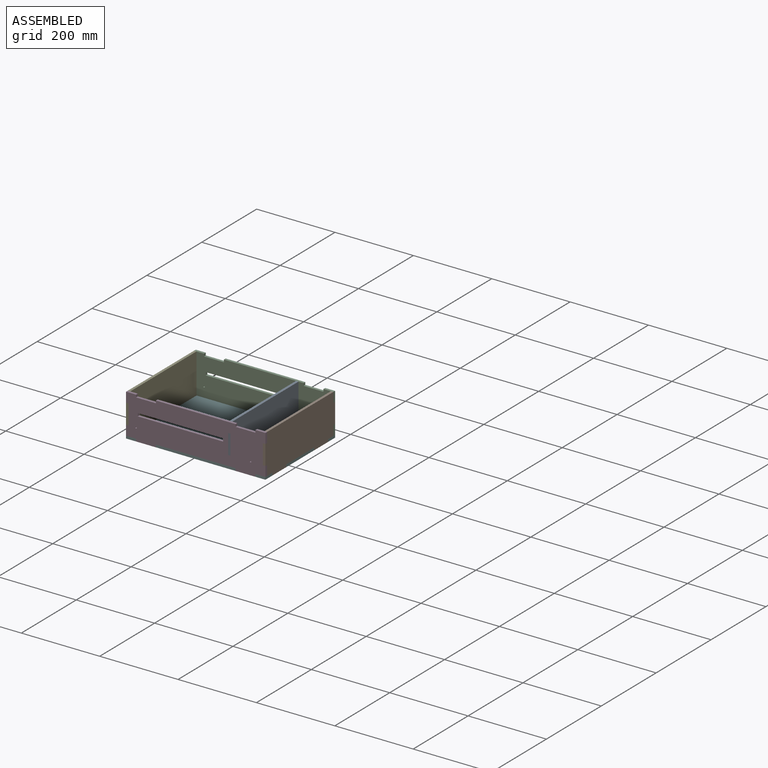
[diagram: assembled view]
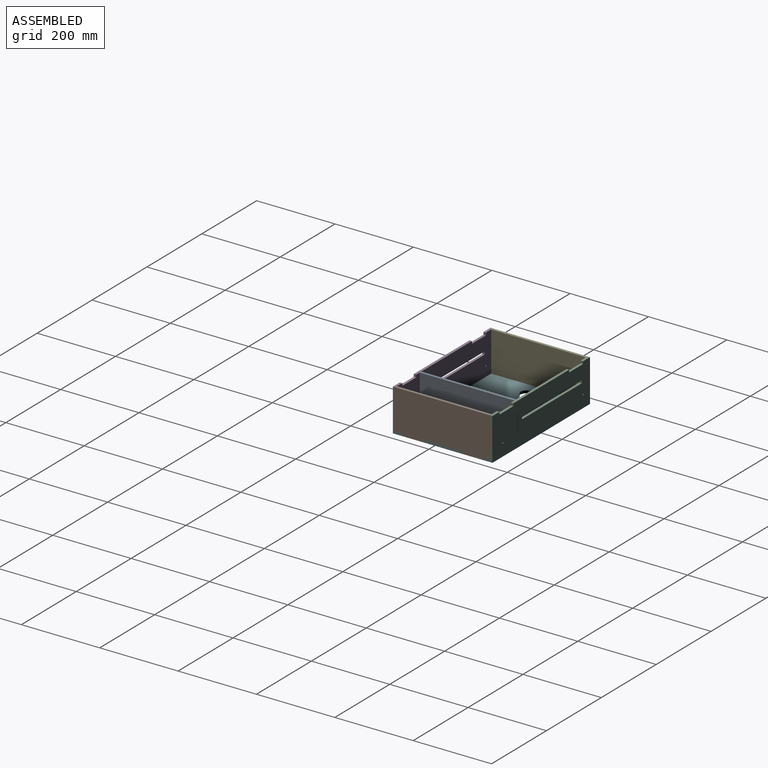
[diagram: assembled view, second angle]
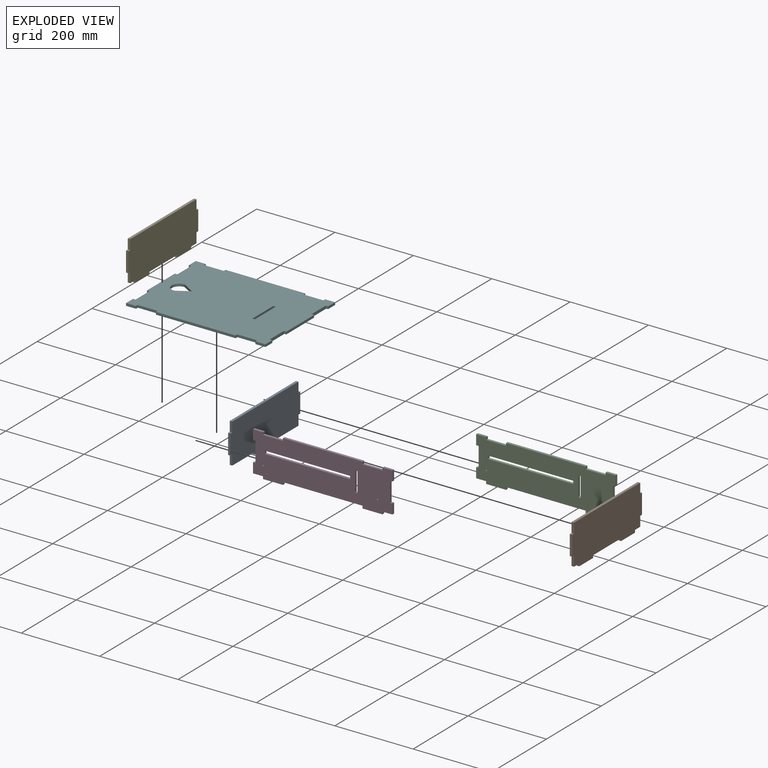
[diagram: exploded view]
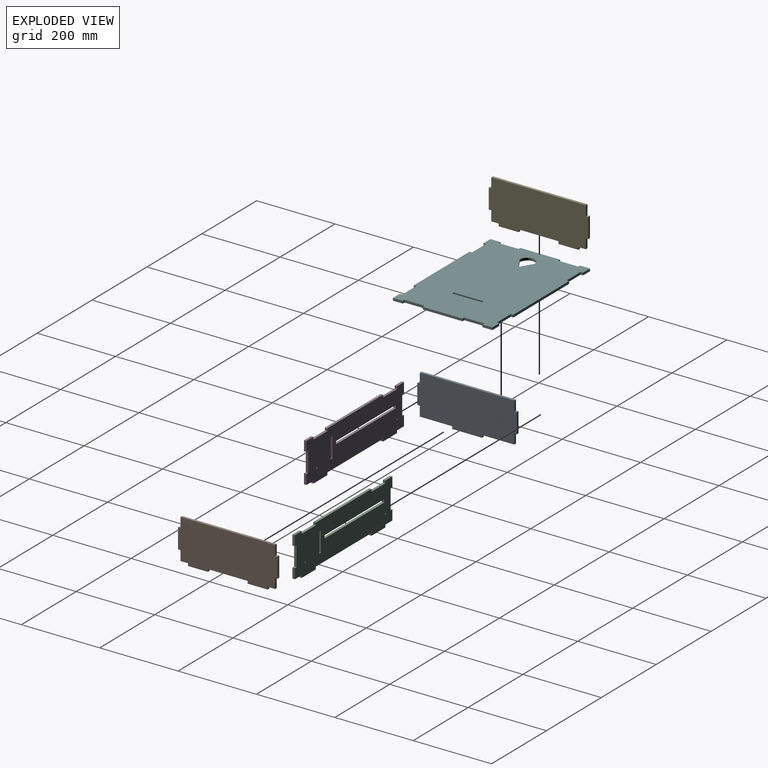
[diagram: exploded view, second angle]
ASSEMBLY  parts=6 mates=5
PART A: 18 faces, bbox 254x6.4x108 mm
  f0: plane 25.4x6.35mm, normal (1,0,0), area 161.3mm2, adj f2,f7,f8,f15
  f1: plane 25.4x6.35mm, normal (-1,0,0), area 161.3mm2, adj f4,f7,f8,f12
  f2: plane 82.55x6.35mm, normal (0,0,-1), area 524.2mm2, adj f0,f7,f8,f9
  f3: plane 25.4x6.35mm, normal (-1,0,0), area 161.3mm2, adj f6,f7,f8,f13
  f4: plane 82.55x6.35mm, normal (0,0,-1), area 524.2mm2, adj f1,f7,f8,f10
  f5: plane 25.4x6.35mm, normal (1,0,0), area 161.3mm2, adj f6,f7,f8,f17
  f6: plane 241.3x6.35mm, normal (0,0,1), area 1532.3mm2, adj f3,f5,f7,f8
  f7: plane 254x107.95mm, normal (0,-1,0), area 25645.1mm2, adj f0,f1,f2,f3,f4,f5,f6,f9
  f8: plane 254x107.95mm, normal (0,1,0), area 25645.1mm2, adj f0,f1,f2,f3,f4,f5,f6,f9
  f9: plane 6.35x6.35mm, normal (1,0,0), area 40.3mm2, adj f2,f7,f8,f11
  f10: plane 6.35x6.35mm, normal (-1,0,0), area 40.3mm2, adj f4,f7,f8,f11
  f11: plane 76.2x6.35mm, normal (0,0,-1), area 483.9mm2, adj f7,f8,f9,f10
  f12: plane 6.35x6.35mm, normal (0,0,-1), area 40.3mm2, adj f1,f7,f8,f14
  f13: plane 6.35x6.35mm, normal (0,0,1), area 40.3mm2, adj f3,f7,f8,f14
  f14: plane 50.8x6.35mm, normal (-1,0,0), area 322.6mm2, adj f7,f8,f12,f13
  f15: plane 6.35x6.35mm, normal (0,0,-1), area 40.3mm2, adj f0,f7,f8,f16
  f16: plane 50.8x6.35mm, normal (1,0,0), area 322.6mm2, adj f7,f8,f15,f17
  f17: plane 6.35x6.35mm, normal (0,0,1), area 40.3mm2, adj f5,f7,f8,f16
PART B: 22 faces, bbox 254x6.4x108 mm
  f0: plane 50.8x6.35mm, normal (0,0,-1), area 322.6mm2, adj f1,f2,f3,f4
  f1: plane 6.35x6.35mm, normal (1,0,0), area 40.3mm2, adj f0,f3,f4,f8
  f2: plane 6.35x6.35mm, normal (-1,0,0), area 40.3mm2, adj f0,f3,f4,f5
  f3: plane 254x107.95mm, normal (0,1,0), area 25806.4mm2, adj f0,f1,f2,f5,f6,f7,f8,f9
  f4: plane 254x107.95mm, normal (0,-1,0), area 25806.4mm2, adj f0,f1,f2,f5,f6,f7,f8,f9
  f5: plane 19.05x6.35mm, normal (0,0,-1), area 121mm2, adj f2,f3,f4,f16
  f6: plane 19.05x6.35mm, normal (0,0,-1), area 121mm2, adj f3,f4,f13,f21
  f7: plane 50.8x6.35mm, normal (-1,0,0), area 322.6mm2, adj f3,f4,f15,f18
  f8: plane 101.6x6.35mm, normal (0,0,-1), area 645.2mm2, adj f1,f3,f4,f19
  f9: plane 50.8x6.35mm, normal (1,0,0), area 322.6mm2, adj f3,f4,f12,f14
  f10: plane 241.3x6.35mm, normal (0,0,1), area 1532.3mm2, adj f3,f4,f11,f17
  f11: plane 25.4x6.35mm, normal (1,0,0), area 161.3mm2, adj f3,f4,f10,f12
  f12: plane 6.35x6.35mm, normal (0,0,1), area 40.3mm2, adj f3,f4,f9,f11
  f13: plane 25.4x6.35mm, normal (1,0,0), area 161.3mm2, adj f3,f4,f6,f14
  f14: plane 6.35x6.35mm, normal (0,0,-1), area 40.3mm2, adj f3,f4,f9,f13
  f15: plane 6.35x6.35mm, normal (0,0,-1), area 40.3mm2, adj f3,f4,f7,f16
  f16: plane 25.4x6.35mm, normal (-1,0,0), area 161.3mm2, adj f3,f4,f5,f15
  f17: plane 25.4x6.35mm, normal (-1,0,0), area 161.3mm2, adj f3,f4,f10,f18
  f18: plane 6.35x6.35mm, normal (0,0,1), area 40.3mm2, adj f3,f4,f7,f17
  f19: plane 6.35x6.35mm, normal (-1,0,0), area 40.3mm2, adj f3,f4,f8,f20
  f20: plane 50.8x6.35mm, normal (0,0,-1), area 322.6mm2, adj f3,f4,f19,f21
  f21: plane 6.35x6.35mm, normal (1,0,0), area 40.3mm2, adj f3,f4,f6,f20
PART C: 40 faces, bbox 6.4x355.6x108 mm
  f0: plane 203.2x6.35mm, normal (0,0,1), area 1290.3mm2, adj f2,f3,f31,f33
  f1: plane 25.4x6.35mm, normal (0,0,1), area 161.3mm2, adj f2,f3,f13,f30
  f2: plane 355.6x107.95mm, normal (-1,0,0), area 33478.7mm2, adj f0,f1,f4,f5,f6,f7,f8,f9
  f3: plane 355.6x107.95mm, normal (1,0,0), area 33478.7mm2, adj f0,f1,f4,f5,f6,f7,f8,f9
  f4: plane 6.35x6.35mm, normal (0,-1,0), area 40.3mm2, adj f2,f3,f5,f7
  f5: plane 50.8x6.35mm, normal (0,0,-1), area 322.6mm2, adj f2,f3,f4,f6
  f6: plane 6.35x6.35mm, normal (0,1,0), area 40.3mm2, adj f2,f3,f5,f12
  f7: plane 25.4x6.35mm, normal (0,0,-1), area 161.3mm2, adj f2,f3,f4,f9
  f8: plane 25.4x6.35mm, normal (0,0,-1), area 161.3mm2, adj f2,f3,f10,f25
  f9: plane 25.4x6.35mm, normal (0,-1,0), area 161.3mm2, adj f2,f3,f7,f17
  f10: plane 25.4x6.35mm, normal (0,1,0), area 161.3mm2, adj f2,f3,f8,f20
  f11: plane 25.4x6.35mm, normal (0,-1,0), area 161.3mm2, adj f2,f3,f14,f19
  f12: plane 203.2x6.35mm, normal (0,0,-1), area 1290.3mm2, adj f2,f3,f6,f23
  f13: plane 25.4x6.35mm, normal (0,1,0), area 161.3mm2, adj f1,f2,f3,f21
  f14: plane 25.4x6.35mm, normal (0,0,1), area 161.3mm2, adj f2,f3,f11,f34
  f15: cylinder r=1.91mm len=6.35mm, axis (1,0,0), area 76mm2, adj f2,f3
  f16: cylinder r=1.91mm len=6.35mm, axis (1,0,0), area 76mm2, adj f2,f3
  f17: plane 6.35x6.35mm, normal (0,0,1), area 40.3mm2, adj f2,f3,f9,f18
  f18: plane 50.8x6.35mm, normal (0,-1,0), area 322.6mm2, adj f2,f3,f17,f19
  f19: plane 6.35x6.35mm, normal (0,0,-1), area 40.3mm2, adj f2,f3,f11,f18
  f20: plane 6.35x6.35mm, normal (0,0,1), area 40.3mm2, adj f2,f3,f10,f22
  f21: plane 6.35x6.35mm, normal (0,0,-1), area 40.3mm2, adj f2,f3,f13,f22
  f22: plane 50.8x6.35mm, normal (0,1,0), area 322.6mm2, adj f2,f3,f20,f21
  f23: plane 6.35x6.35mm, normal (0,-1,0), area 40.3mm2, adj f2,f3,f12,f24
  f24: plane 50.8x6.35mm, normal (0,0,-1), area 322.6mm2, adj f2,f3,f23,f25
  f25: plane 6.35x6.35mm, normal (0,1,0), area 40.3mm2, adj f2,f3,f8,f24
  f26: plane 50.8x6.35mm, normal (0,1,0), area 322.6mm2, adj f2,f3,f27,f29
  f27: plane 6.35x6.35mm, normal (0,0,1), area 40.3mm2, adj f2,f3,f26,f28
  f28: plane 50.8x6.35mm, normal (0,-1,0), area 322.6mm2, adj f2,f3,f27,f29
  f29: plane 6.35x6.35mm, normal (0,0,-1), area 40.3mm2, adj f2,f3,f26,f28
  f30: plane 6.35x6.35mm, normal (0,-1,0), area 40.3mm2, adj f1,f2,f3,f32
  f31: plane 6.35x6.35mm, normal (0,1,0), area 40.3mm2, adj f0,f2,f3,f32
  f32: plane 50.8x6.35mm, normal (0,0,1), area 322.6mm2, adj f2,f3,f30,f31
  f33: plane 6.35x6.35mm, normal (0,-1,0), area 40.3mm2, adj f0,f2,f3,f35
  f34: plane 6.35x6.35mm, normal (0,1,0), area 40.3mm2, adj f2,f3,f14,f35
  f35: plane 50.8x6.35mm, normal (0,0,1), area 322.6mm2, adj f2,f3,f33,f34
  f36: plane 7.62x6.35mm, normal (0,1,0), area 48.4mm2, adj f2,f3,f37,f39
  f37: plane 217.81x6.35mm, normal (0,0,1), area 1383.1mm2, adj f2,f3,f36,f38
  f38: plane 7.62x6.35mm, normal (0,-1,0), area 48.4mm2, adj f2,f3,f37,f39
  f39: plane 217.81x6.35mm, normal (0,0,-1), area 1383.1mm2, adj f2,f3,f36,f38
PART D: same geometry as C
PART E: same geometry as B
PART F: 45 faces, bbox 254x355.6x6.4 mm
  f0: plane 355.6x254mm, normal (0,0,1), area 86068.2mm2, adj f2,f3,f4,f5,f6,f7,f8,f9
  f1: plane 355.6x254mm, normal (0,0,-1), area 86068.2mm2, adj f2,f3,f4,f5,f6,f7,f8,f9
  f2: plane 203.2x6.35mm, normal (-1,0,0), area 1290.3mm2, adj f0,f1,f34,f35
  f3: plane 25.4x6.35mm, normal (-1,0,0), area 161.3mm2, adj f0,f1,f11,f32
  f4: plane 203.2x6.35mm, normal (1,0,0), area 1290.3mm2, adj f0,f1,f27,f29
  f5: plane 25.4x6.35mm, normal (1,0,0), area 161.3mm2, adj f0,f1,f6,f26
  f6: plane 25.4x6.35mm, normal (0,-1,0), area 161.3mm2, adj f0,f1,f5,f24
  f7: plane 101.6x6.35mm, normal (0,-1,0), area 645.2mm2, adj f0,f1,f20,f23
  f8: plane 25.4x6.35mm, normal (0,1,0), area 161.3mm2, adj f0,f1,f12,f19
  f9: plane 101.6x6.35mm, normal (0,1,0), area 645.2mm2, adj f0,f1,f14,f17
  f10: plane 25.4x6.35mm, normal (-1,0,0), area 161.3mm2, adj f0,f1,f13,f37
  f11: plane 25.4x6.35mm, normal (0,-1,0), area 161.3mm2, adj f0,f1,f3,f22
  f12: plane 25.4x6.35mm, normal (1,0,0), area 161.3mm2, adj f0,f1,f8,f30
  f13: plane 25.4x6.35mm, normal (0,1,0), area 161.3mm2, adj f0,f1,f10,f15
  f14: plane 6.35x6.35mm, normal (-1,0,0), area 40.3mm2, adj f0,f1,f9,f16
  f15: plane 6.35x6.35mm, normal (1,0,0), area 40.3mm2, adj f0,f1,f13,f16
  f16: plane 50.8x6.35mm, normal (0,1,0), area 322.6mm2, adj f0,f1,f14,f15
  f17: plane 6.35x6.35mm, normal (1,0,0), area 40.3mm2, adj f0,f1,f9,f18
  f18: plane 50.8x6.35mm, normal (0,1,0), area 322.6mm2, adj f0,f1,f17,f19
  f19: plane 6.35x6.35mm, normal (-1,0,0), area 40.3mm2, adj f0,f1,f8,f18
  f20: plane 6.35x6.35mm, normal (-1,0,0), area 40.3mm2, adj f0,f1,f7,f21
  f21: plane 50.8x6.35mm, normal (0,-1,0), area 322.6mm2, adj f0,f1,f20,f22
  f22: plane 6.35x6.35mm, normal (1,0,0), area 40.3mm2, adj f0,f1,f11,f21
  f23: plane 6.35x6.35mm, normal (1,0,0), area 40.3mm2, adj f0,f1,f7,f25
  f24: plane 6.35x6.35mm, normal (-1,0,0), area 40.3mm2, adj f0,f1,f6,f25
  f25: plane 50.8x6.35mm, normal (0,-1,0), area 322.6mm2, adj f0,f1,f23,f24
  f26: plane 6.35x6.35mm, normal (0,1,0), area 40.3mm2, adj f0,f1,f5,f28
  f27: plane 6.35x6.35mm, normal (0,-1,0), area 40.3mm2, adj f0,f1,f4,f28
  f28: plane 50.8x6.35mm, normal (1,0,0), area 322.6mm2, adj f0,f1,f26,f27
  f29: plane 6.35x6.35mm, normal (0,1,0), area 40.3mm2, adj f0,f1,f4,f31
  f30: plane 6.35x6.35mm, normal (0,-1,0), area 40.3mm2, adj f0,f1,f12,f31
  f31: plane 50.8x6.35mm, normal (1,0,0), area 322.6mm2, adj f0,f1,f29,f30
  f32: plane 6.35x6.35mm, normal (0,1,0), area 40.3mm2, adj f0,f1,f3,f33
  f33: plane 50.8x6.35mm, normal (-1,0,0), area 322.6mm2, adj f0,f1,f32,f34
  f34: plane 6.35x6.35mm, normal (0,-1,0), area 40.3mm2, adj f0,f1,f2,f33
  f35: plane 6.35x6.35mm, normal (0,1,0), area 40.3mm2, adj f0,f1,f2,f36
  f36: plane 50.8x6.35mm, normal (-1,0,0), area 322.6mm2, adj f0,f1,f35,f37
  f37: plane 6.35x6.35mm, normal (0,-1,0), area 40.3mm2, adj f0,f1,f10,f36
  f38: plane 6.35x6.35mm, normal (1,0,0), area 40.3mm2, adj f0,f1,f39,f41
  f39: plane 76.2x6.35mm, normal (0,1,0), area 483.9mm2, adj f0,f1,f38,f40
  f40: plane 6.35x6.35mm, normal (-1,0,0), area 40.3mm2, adj f0,f1,f39,f41
  f41: plane 76.2x6.35mm, normal (0,-1,0), area 483.9mm2, adj f0,f1,f38,f40
  f42: plane 31.9x19.05mm, normal (-0.86,0.51,0), area 235.9mm2, adj f0,f1,f43,f44
  f43: cylinder r=19.05mm len=38.11mm, axis (0,0,1), area 384mm2, adj f0,f1,f42,f44
  f44: plane 31.9x19.05mm, normal (0.86,0.51,0), area 235.9mm2, adj f0,f1,f42,f43
PLACE A rot(axis=(0,0,1),90deg) t=(296.06,28.96,-240.22)mm
PLACE B rot(axis=(0,0,1),90deg) t=(384.96,28.96,-240.22)mm
PLACE C rot(axis=(0,0,1),90deg) t=(213.51,149.61,-240.22)mm
PLACE D rot(axis=(0,0,1),90deg) t=(213.51,-98.04,-240.22)mm
PLACE E rot(axis=(0,0,-1),90deg) t=(42.06,28.96,-240.22)mm
PLACE F rot(axis=(0,0,1),90deg) t=(213.51,28.96,-246.57)mm
MATE fastened B.f1 <-> F.f20  axis (0,1,0) through (388.13,-21.84,-243.39)mm
MATE fastened E.f2 <-> F.f19  axis (0,1,0) through (38.88,130.56,-243.39)mm
MATE fastened A.f9 <-> F.f40  axis (0,1,0) through (299.23,67.06,-243.39)mm
MATE fastened C.f4 <-> F.f26  axis (1,0,0) through (365.91,152.79,-243.39)mm
MATE fastened D.f23 <-> F.f35  axis (1,0,0) through (111.91,-94.86,-243.39)mm
